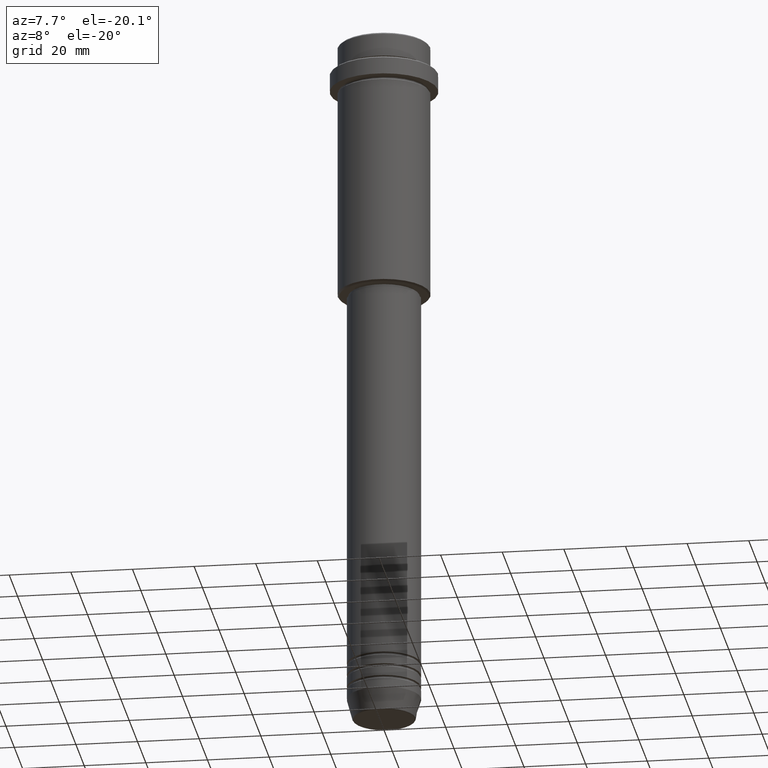
[diagram: clean part render]
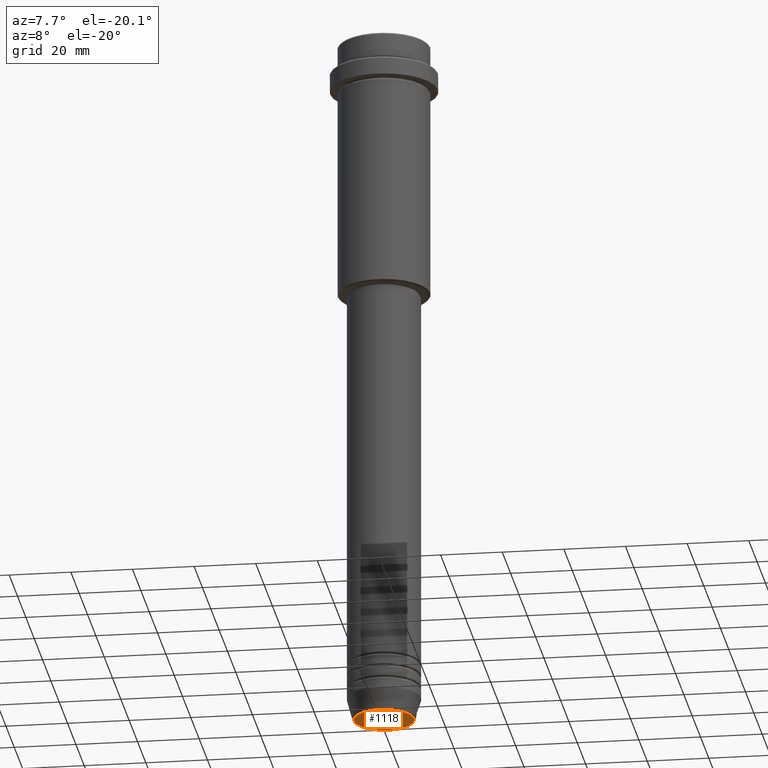
[diagram: same view with one face highlighted and labeled with its STEP entity id]
A machine part, auxiliary view. The second image highlights one B-rep face of the part: STEP entity #1118.
In plain terms, the highlighted planar face has unit normal (0, -0, 1).
Its self-contained STEP definition (entity closure, byte-faithful):
#27 = VERTEX_POINT ( 'NONE', #950 ) ;
#42 = CIRCLE ( 'NONE', #440, 9.740692158992658278 ) ;
#88 = EDGE_CURVE ( 'NONE', #27, #1382, #709, .T. ) ;
#94 = CARTESIAN_POINT ( 'NONE',  ( -9.740692158992658278, 1.222463696683474999E-15, -229.9999999999999716 ) ) ;
#109 = CARTESIAN_POINT ( 'NONE',  ( 0.000000000000000000, 0.000000000000000000, -229.9999999999999716 ) ) ;
#137 = FACE_OUTER_BOUND ( 'NONE', #1250, .T. ) ;
#148 = DIRECTION ( 'NONE',  ( 1.000000000000000000, 0.000000000000000000, 0.000000000000000000 ) ) ;
#153 = DIRECTION ( 'NONE',  ( 0.000000000000000000, -0.000000000000000000, 1.000000000000000000 ) ) ;
#207 = ORIENTED_EDGE ( 'NONE', *, *, #88, .T. ) ;
#440 = AXIS2_PLACEMENT_3D ( 'NONE', #109, #1235, #463 ) ;
#463 = DIRECTION ( 'NONE',  ( 1.000000000000000000, 0.000000000000000000, 0.000000000000000000 ) ) ;
#597 = PLANE ( 'NONE',  #600 ) ;
#600 = AXIS2_PLACEMENT_3D ( 'NONE', #916, #153, #148 ) ;
#709 = CIRCLE ( 'NONE', #838, 9.740692158992658278 ) ;
#791 = CARTESIAN_POINT ( 'NONE',  ( 0.000000000000000000, 0.000000000000000000, -229.9999999999999716 ) ) ;
#838 = AXIS2_PLACEMENT_3D ( 'NONE', #791, #1359, #902 ) ;
#902 = DIRECTION ( 'NONE',  ( 1.000000000000000000, 0.000000000000000000, 0.000000000000000000 ) ) ;
#916 = CARTESIAN_POINT ( 'NONE',  ( 0.000000000000000000, 0.000000000000000000, -229.9999999999999716 ) ) ;
#950 = CARTESIAN_POINT ( 'NONE',  ( 9.740692158992658278, 0.000000000000000000, -229.9999999999999716 ) ) ;
#1032 = EDGE_CURVE ( 'NONE', #1382, #27, #42, .T. ) ;
#1118 = ADVANCED_FACE ( 'NONE', ( #137 ), #597, .F. ) ;
#1235 = DIRECTION ( 'NONE',  ( 0.000000000000000000, 0.000000000000000000, -1.000000000000000000 ) ) ;
#1250 = EDGE_LOOP ( 'NONE', ( #207, #1388 ) ) ;
#1359 = DIRECTION ( 'NONE',  ( 0.000000000000000000, 0.000000000000000000, -1.000000000000000000 ) ) ;
#1382 = VERTEX_POINT ( 'NONE', #94 ) ;
#1388 = ORIENTED_EDGE ( 'NONE', *, *, #1032, .T. ) ;